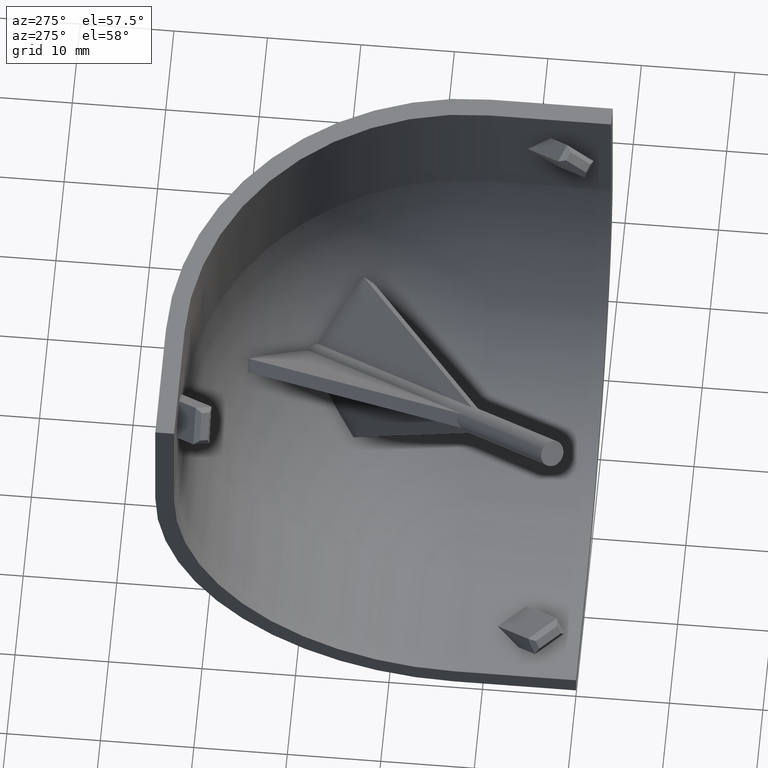
[diagram: clean part render]
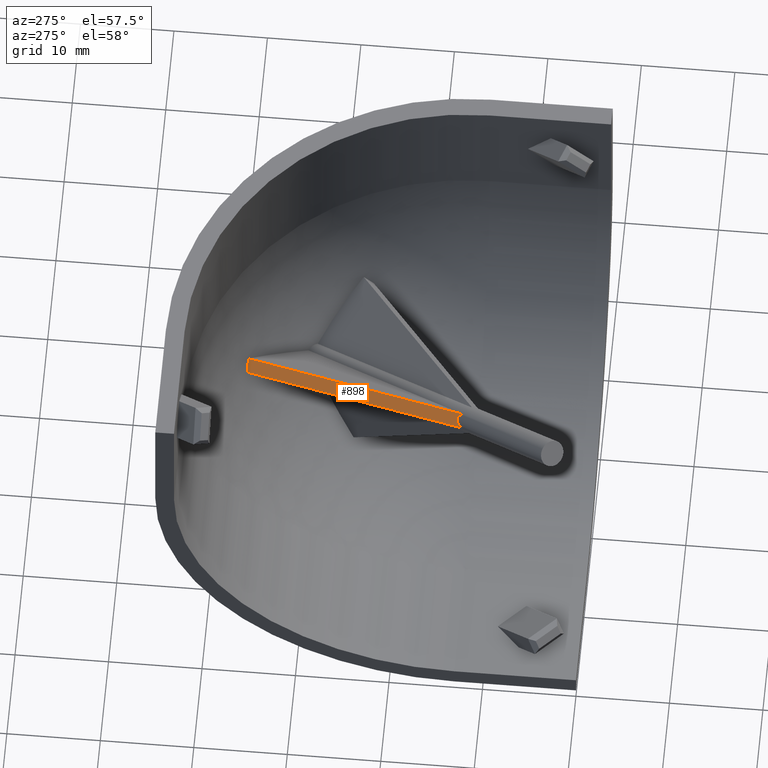
[diagram: same view with one face highlighted and labeled with its STEP entity id]
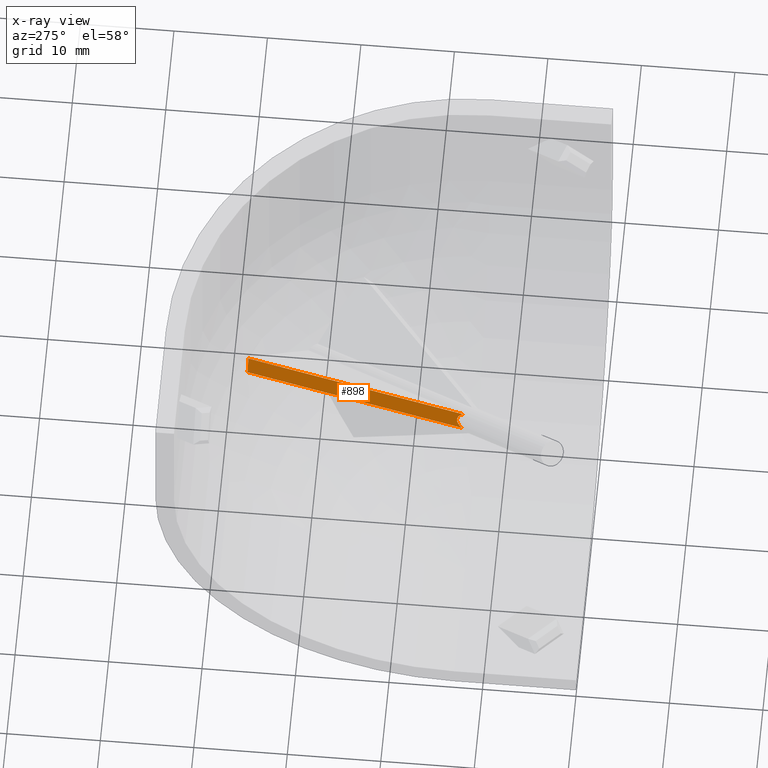
[diagram: x-ray of the same camera — body ghosted, the highlighted face saturated]
A machine part, auxiliary view. The second image highlights one B-rep face of the part: STEP entity #898.
The next image is the same camera in x-ray: the body ghosted, the highlighted face saturated — about 0% of this face is hidden behind the body in this view.
In plain terms, the highlighted planar face has unit normal (-0.5512, 0.6264, 0.5512).
Its self-contained STEP definition (entity closure, byte-faithful):
#28=PLANE('',#983);
#115=LINE('',#1437,#214);
#116=LINE('',#1438,#215);
#214=VECTOR('',#1167,30.9555790759953);
#215=VECTOR('',#1168,30.9555790759949);
#268=ELLIPSE('',#939,5.09339540071324,1.40000000000002);
#291=FACE_OUTER_BOUND('',#351,.T.);
#351=EDGE_LOOP('',(#741,#742,#743,#744));
#394=CIRCLE('',#948,29.9616539883931);
#418=VERTEX_POINT('',#1302);
#419=VERTEX_POINT('',#1304);
#427=VERTEX_POINT('',#1322);
#428=VERTEX_POINT('',#1324);
#497=EDGE_CURVE('',#419,#418,#268,.T.);
#507=EDGE_CURVE('',#427,#428,#394,.T.);
#563=EDGE_CURVE('',#419,#427,#115,.T.);
#564=EDGE_CURVE('',#418,#428,#116,.T.);
#741=ORIENTED_EDGE('',*,*,#507,.F.);
#742=ORIENTED_EDGE('',*,*,#563,.F.);
#743=ORIENTED_EDGE('',*,*,#497,.T.);
#744=ORIENTED_EDGE('',*,*,#564,.T.);
#898=ADVANCED_FACE('',(#291),#28,.T.);
#939=AXIS2_PLACEMENT_3D('',#1305,#1034,#1035);
#948=AXIS2_PLACEMENT_3D('',#1325,#1054,#1055);
#983=AXIS2_PLACEMENT_3D('',#1436,#1165,#1166);
#1034=DIRECTION('center_axis',(0.551217453556038,-0.626353444782071,-0.551217453556063));
#1035=DIRECTION('ref_axis',(0.442898768224948,0.779539198635728,-0.442898768224964));
#1054=DIRECTION('center_axis',(0.55121745355604,-0.626353444782076,-0.551217453556055));
#1055=DIRECTION('ref_axis',(-2.73519133342325E-14,-0.660645741583926,0.750697811457463));
#1165=DIRECTION('center_axis',(-0.55121745355604,0.626353444782076,0.551217453556055));
#1166=DIRECTION('ref_axis',(0.707106781186558,0.,0.707106781186537));
#1167=DIRECTION('',(0.442898768224956,0.779539198635724,-0.442898768224963));
#1168=DIRECTION('',(0.442898768224956,0.779539198635724,-0.442898768224963));
#1302=CARTESIAN_POINT('',(12.2501300768897,13.1676432145569,-11.1894699051101));
#1304=CARTESIAN_POINT('',(11.1894699051097,13.1676432145567,-12.2501300768898));
#1305=CARTESIAN_POINT('Origin',(9.81495457622345,9.81495457622326,-9.81495457622348));
#1322=CARTESIAN_POINT('',(24.8996577475583,37.2987305207628,-25.9603179193386));
#1324=CARTESIAN_POINT('',(25.9603179193381,37.2987305207628,-24.8996577475587));
#1325=CARTESIAN_POINT('Origin',(12.16416632954,13.9497654607634,-12.1641663295399));
#1436=CARTESIAN_POINT('Origin',(30.3621919826909,45.0464002503352,-29.3015318109116));
#1437=CARTESIAN_POINT('',(11.1894699051097,13.1676432145566,-12.2501300768898));
#1438=CARTESIAN_POINT('',(12.2501300768897,13.1676432145569,-11.1894699051101));